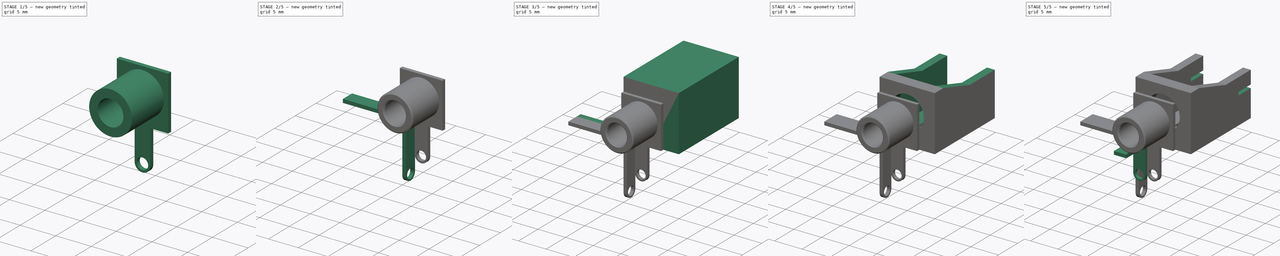
[diagram: build sequence overview — one tinted view per stage of 5, left to right]
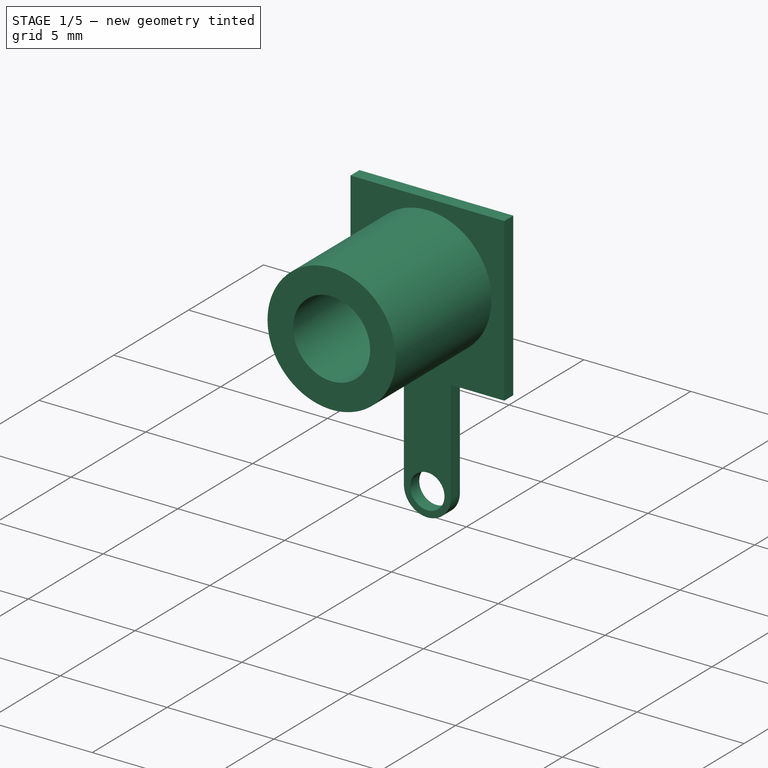
[diagram: stage 1 of 5 — iso view after this stage's code; geometry added in this stage tinted green]
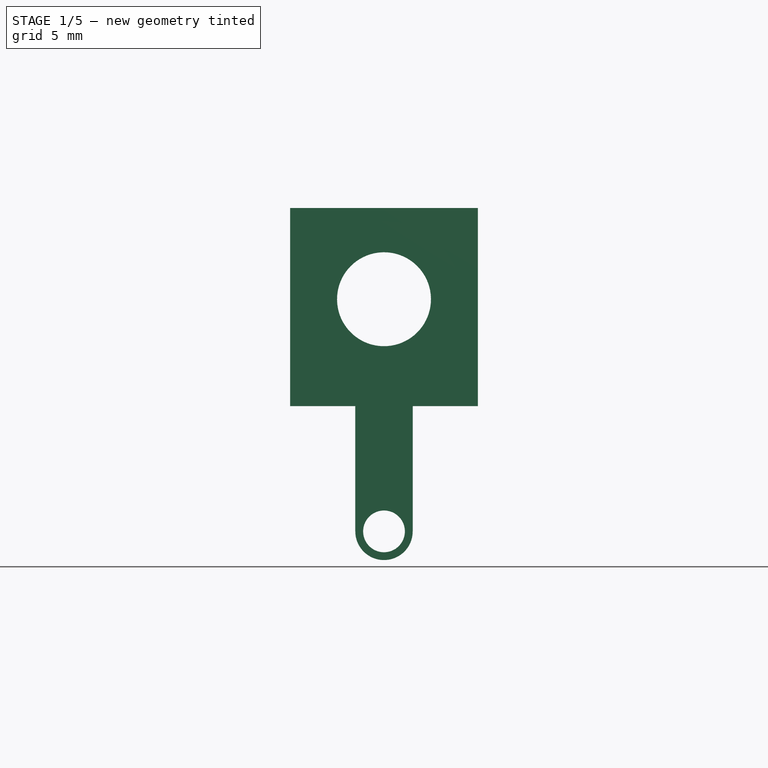
[diagram: stage 1 of 5 — front view after this stage's code; geometry added in this stage tinted green]
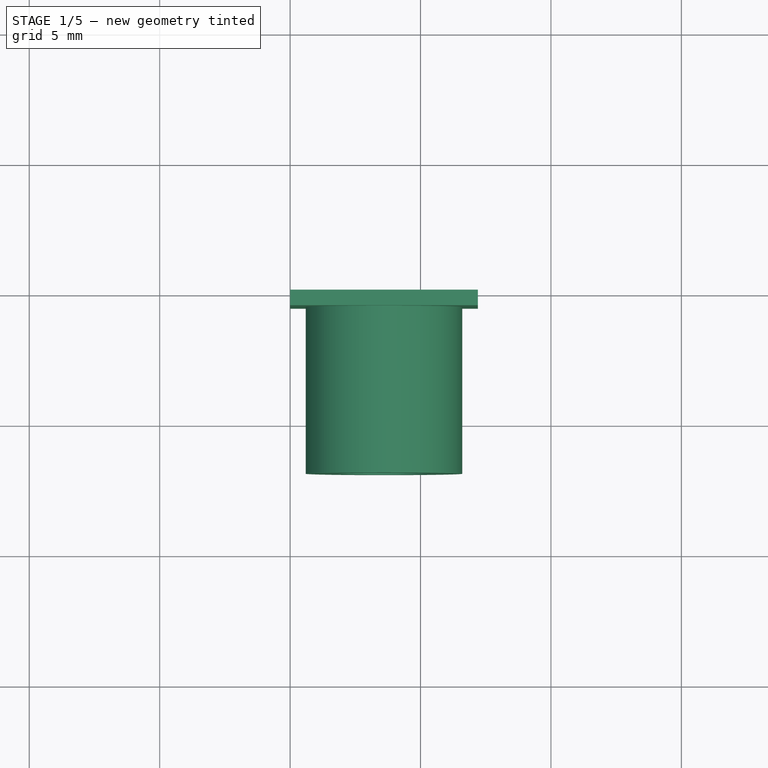
[diagram: stage 1 of 5 — top view after this stage's code; geometry added in this stage tinted green]
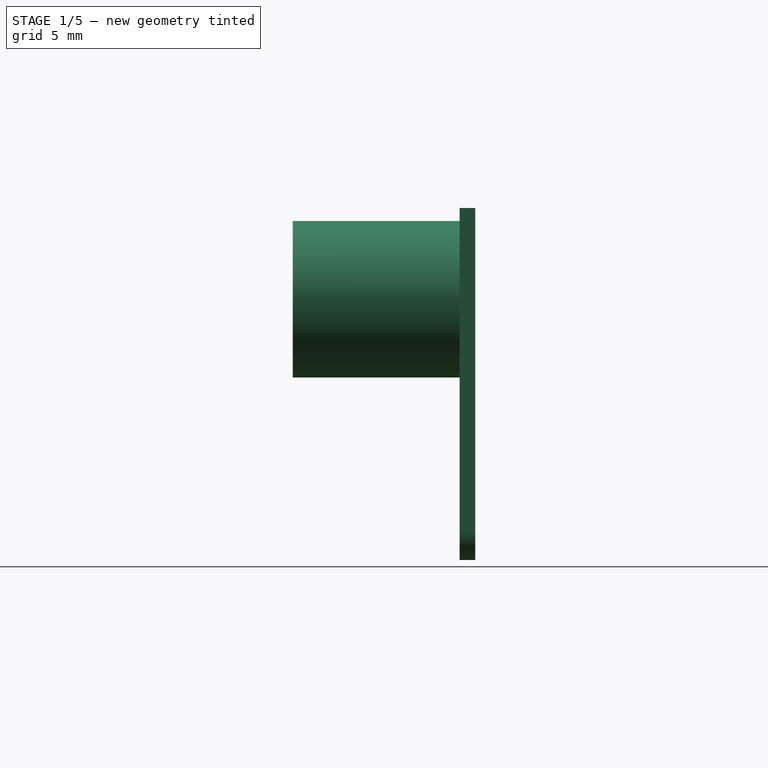
[diagram: stage 1 of 5 — right view after this stage's code; geometry added in this stage tinted green]
FCSTD DOCUMENT  (FreeCAD 0.18R4 (GitTag))
Label: Jack
License: All rights reserved
LicenseURL: http://en.wikipedia.org/wiki/All_rights_reserved
objects: Sketcher::SketchObject×13, PartDesign::Pad×8, PartDesign::Pocket×5, PartDesign::Body×4, PartDesign::Hole×1, PartDesign::Chamfer×1, App::Part×1
note: 46 computed .brp shape members not serialized (recipe doc carries the construction recipe); baked Part::Feature solids carry a one-line shape summary decoded from their .brp

FEATURE [Sketcher::SketchObject] Sketch005
  MapMode = 5
  Placement = pos=(0,0,0) rot=(1,0,0;1.5708rad)
  Support = -> [XZ_Plane]
  sketch-geometry (10):
    g0: LineSegment StartX=7.2 StartY=7.6 StartZ=0 EndX=0 EndY=7.6 EndZ=0
    g1: LineSegment StartX=0 StartY=7.6 StartZ=0 EndX=0 EndY=0 EndZ=0
    g2: LineSegment StartX=0 StartY=0 StartZ=0 EndX=2.5 EndY=0 EndZ=0
    g3: LineSegment StartX=2.5 StartY=0 StartZ=0 EndX=2.5 EndY=-4.8 EndZ=0
    g4: LineSegment StartX=4.7 StartY=-4.8 StartZ=0 EndX=4.7 EndY=0 EndZ=0
    g5: LineSegment StartX=4.7 StartY=-4e-16 StartZ=0 EndX=7.2 EndY=-4e-16 EndZ=0
    g6: LineSegment StartX=7.2 StartY=-4e-16 StartZ=0 EndX=7.2 EndY=7.6 EndZ=0
    g7: ArcOfCircle CenterX=3.6 CenterY=-4.8 CenterZ=0 NormalX=0 NormalY=0 NormalZ=1 AngleXU=0 Radius=1.1 StartAngle=3.14159 EndAngle=6.28319
    g8: GeomPoint X=3.6 Y=-5.9 Z=0
    g9: Circle CenterX=3.6 CenterY=-4.8 CenterZ=0 NormalX=0 NormalY=0 NormalZ=1 AngleXU=0 Radius=0.8
  constraints (28):
    c: Coincident(g0,g1)
    c: Coincident(g1,g2)
    c: Coincident(g2,g3)
    c: Coincident(g4,g5)
    c: Coincident(g5,g6)
    c: Coincident(g6,g0)
    c: Horizontal(g0)
    c: Horizontal(g2)
    c: Horizontal(g5)
    c: Vertical(g6)
    c: Vertical(g1)
    c: Vertical(g3)
    c: Vertical(g4)
    c: Equal(g5,g2)
    c: Equal(g1,g6)
    c: Equal(g3,g4)
    c: DistanceX(g8,g7) = 0
    c: PointOnObject(g8,g7)
    c: Coincident(g4,g7)
    c: Coincident(g3,g7)
    c: DistanceX(g2,g4) = 2.2
    c: Coincident(g9,g7)
    c: Radius(g9) = 0.8
    c: DistanceX(g0,g0) = 7.2
    c: DistanceY(g6,g6) = 7.6
    c: Coincident(g1,g-1)
    c: DistanceY(g8,g2) = 5.9
    c: Tangent(g4,g7) = -1.5708
FEATURE [PartDesign::Pad] Pad001
  Length = 0.6
  Length2 = 100
  Placement = pos=(0,0,0) rot=(1,0,0;1.5708rad)
  Profile = -> Sketch005
  Type = 0
FEATURE [Sketcher::SketchObject] Sketch006
  ExternalGeometry = -> [Pad001]
  MapMode = 5
  Placement = pos=(0,-0.6,3e-16) rot=(1,0,0;1.5708rad)
  Support = -> [Pad001]
  sketch-geometry (2):
    g0: Circle CenterX=3.6 CenterY=4.1 CenterZ=0 NormalX=0 NormalY=0 NormalZ=1 AngleXU=0 Radius=3
    g1: GeomPoint X=3.6 Y=7.6 Z=0
  constraints (4):
    c: Diameter(g0) = 6
    c: DistanceY(g0,g-3) = 3.5
    c: Symmetric(g-3,g-3,g1)
    c: DistanceX(g1,g0) = 0
FEATURE [PartDesign::Pad] Pad002
  BaseFeature = -> Pad001
  Length = 6.4
  Length2 = 100
  Placement = pos=(0,0,0) rot=(1,0,0;1.5708rad)
  Profile = -> Sketch006
  Type = 0
FEATURE [Sketcher::SketchObject] Sketch007
  ExternalGeometry = -> [Pad002]
  MapMode = 5
  Placement = pos=(0,-7,6.9e-15) rot=(1,0,0;1.5708rad)
  Support = -> [Pad002]
  sketch-geometry (1):
    g0: Circle CenterX=3.6 CenterY=4.1 CenterZ=0 NormalX=0 NormalY=0 NormalZ=1 AngleXU=0 Radius=1.8
  constraints (2):
    c: Coincident(g-3,g0)
    c: Diameter(g0) = 3.6
FEATURE [PartDesign::Pocket] Pocket003
  BaseFeature = -> Pad002
  Length = 9
  Length2 = 100
  Placement = pos=(0,0,0) rot=(1,0,0;1.5708rad)
  Profile = -> Sketch007
  Type = 0
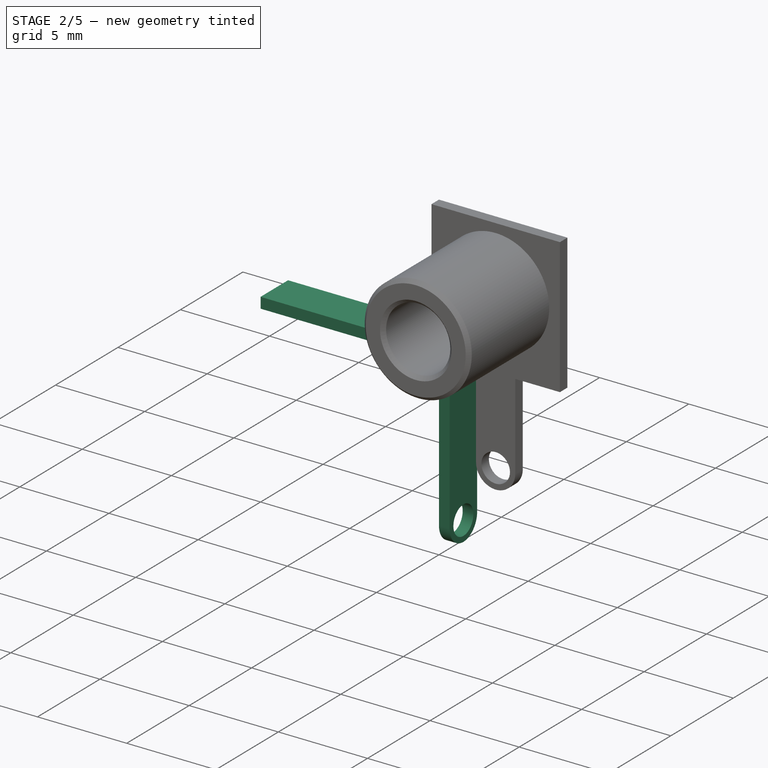
[diagram: stage 2 of 5 — iso view after this stage's code; geometry added in this stage tinted green]
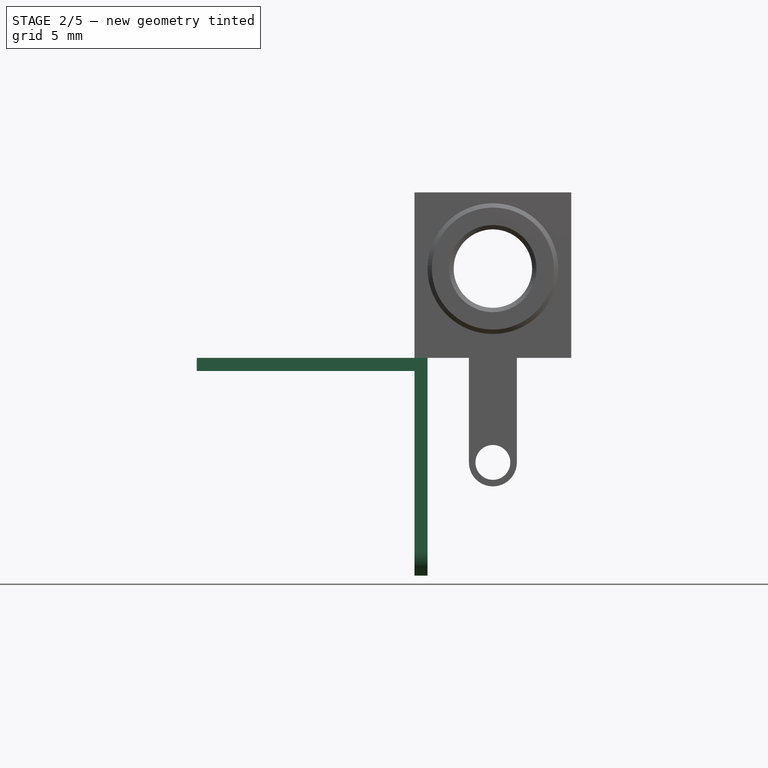
[diagram: stage 2 of 5 — front view after this stage's code; geometry added in this stage tinted green]
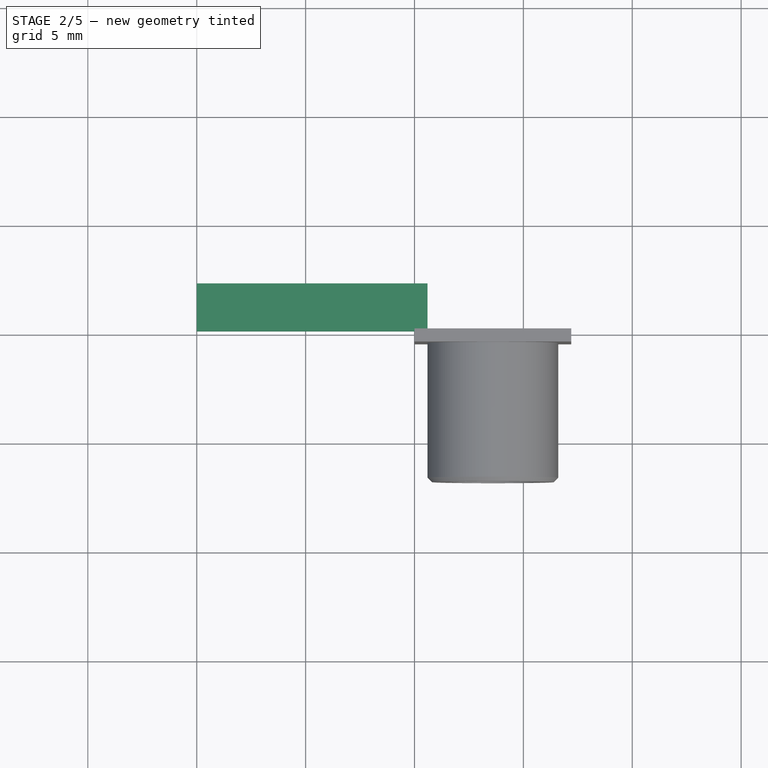
[diagram: stage 2 of 5 — top view after this stage's code; geometry added in this stage tinted green]
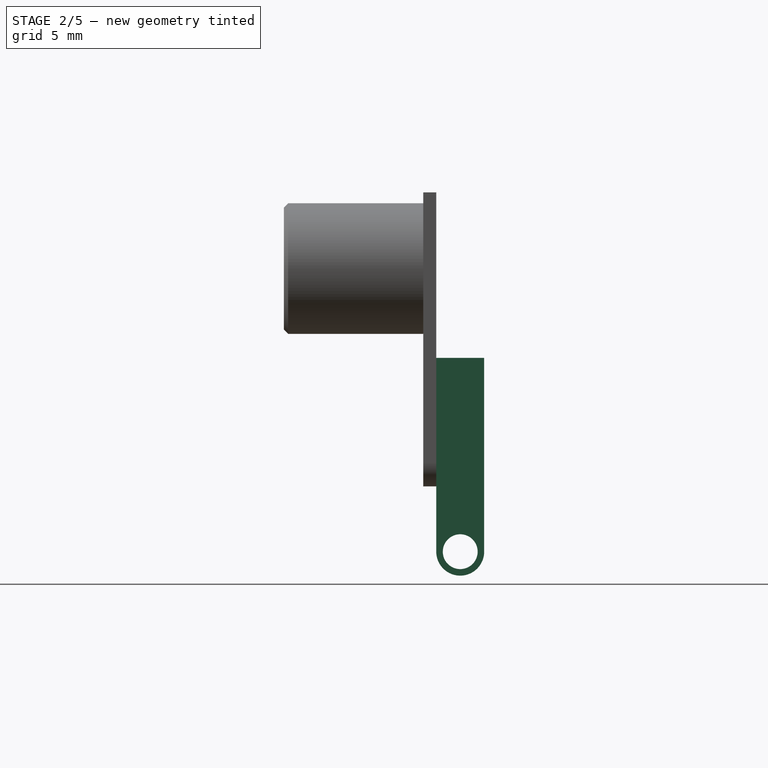
[diagram: stage 2 of 5 — right view after this stage's code; geometry added in this stage tinted green]
FEATURE [PartDesign::Body] Body002  label="Rear lug"
  Group = -> [Sketch008,Pad003,Sketch009,Pad004]
  Origin = -> Origin002
  Placement = pos=(3.9,16.1,2) rot=(0,0,1;0rad)
  Tip = -> Pad004
FEATURE [Sketcher::SketchObject] Sketch010
  MapMode = 5
  Placement = pos=(0,0,0) rot=(0.57735,0.57735,0.57735;2.0944rad)
  Support = -> [YZ_Plane004]
  sketch-geometry (6):
    g0: LineSegment StartX=0 StartY=-8.9 StartZ=0 EndX=0 EndY=0 EndZ=0
    g1: LineSegment StartX=0 StartY=0 StartZ=0 EndX=2.2 EndY=0 EndZ=0
    g2: LineSegment StartX=2.2 StartY=0 StartZ=0 EndX=2.2 EndY=-8.9 EndZ=0
    g3: ArcOfCircle CenterX=1.1 CenterY=-8.9 CenterZ=0 NormalX=0 NormalY=0 NormalZ=1 AngleXU=0 Radius=1.1 StartAngle=3.14159 EndAngle=6.28319
    g4: GeomPoint X=1.1 Y=-10 Z=0
    g5: Circle CenterX=1.1 CenterY=-8.9 CenterZ=0 NormalX=0 NormalY=0 NormalZ=1 AngleXU=0 Radius=0.8
  constraints (15):
    c: Coincident(g0,g1)
    c: Coincident(g1,g2)
    c: Horizontal(g1)
    c: Vertical(g0)
    c: Vertical(g2)
    c: Equal(g2,g0)
    c: DistanceX(g1,g1) = 2.2
    c: PointOnObject(g4,g3)
    c: DistanceX(g3,g4) = 0
    c: Tangent(g3,g0) = 1.5708
    c: Coincident(g0,g-1)
    c: DistanceY(g4,g0) = 10
    c: Coincident(g2,g3)
    c: Radius(g5) = 0.8
    c: Coincident(g3,g5)
FEATURE [PartDesign::Pad] Pad005
  Length = 0.6
  Length2 = 100
  Placement = pos=(0,0,0) rot=(0.57735,0.57735,0.57735;2.0944rad)
  Profile = -> Sketch010
  Type = 0
FEATURE [Sketcher::SketchObject] Sketch011
  ExternalGeometry = -> [Pad005]
  MapMode = 5
  Placement = pos=(0,0,0) rot=(0.57735,0.57735,-0.57735;4.18879rad)
  Support = -> [Pad005]
  sketch-geometry (4):
    g0: LineSegment StartX=0 StartY=0.6 StartZ=0 EndX=2.2 EndY=0.6 EndZ=0
    g1: LineSegment StartX=2.2 StartY=0.6 StartZ=0 EndX=2.2 EndY=1.2e-15 EndZ=0
    g2: LineSegment StartX=2.2 StartY=1.2e-15 StartZ=0 EndX=0 EndY=0 EndZ=0
    g3: LineSegment StartX=0 StartY=0 StartZ=0 EndX=0 EndY=0.6 EndZ=0
  constraints (10):
    c: Coincident(g0,g1)
    c: Coincident(g1,g2)
    c: Coincident(g2,g3)
    c: Coincident(g3,g0)
    c: Horizontal(g0)
    c: Vertical(g1)
    c: Vertical(g3)
    c: Coincident(g1,g-3)
    c: Coincident(g2,g-1)
    c: DistanceY(g3,g3) = 0.6
FEATURE [PartDesign::Pad] Pad006
  BaseFeature = -> Pad005
  Length = 10
  Length2 = 100
  Placement = pos=(0,0,0) rot=(0.57735,0.57735,0.57735;2.0944rad)
  Profile = -> Sketch011
  Type = 0
FEATURE [PartDesign::Body] Body004  label="Side lug"
  Group = -> [Sketch010,Pad005,Sketch011,Pad006,Pad007]
  Origin = -> Origin004
  Placement = pos=(10,12.3,5.5) rot=(0,0,1;0rad)
  Tip = -> Pad007
FEATURE [PartDesign::Chamfer] Chamfer
  Base = -> Pocket003 [Face14]
  BaseFeature = -> Pocket003
  Placement = pos=(0,0,0) rot=(1,0,0;1.5708rad)
  Size = 0.2
FEATURE [PartDesign::Body] Body  label="Front lug"
  Group = -> [Sketch005,Pad001,Sketch006,Pad002,Sketch007,Pocket003,Chamfer]
  Origin = -> Origin
  Placement = pos=(1.4,2.6,1.4) rot=(0,0,1;0rad)
  Tip = -> Chamfer
FEATURE [App::Part] Part  label="PJ302M"
  Group = -> [Body001,Body,Body002,Body004]
  Origin = -> Origin005
  Placement = pos=(0,4,0) rot=(0,0,1;0rad)
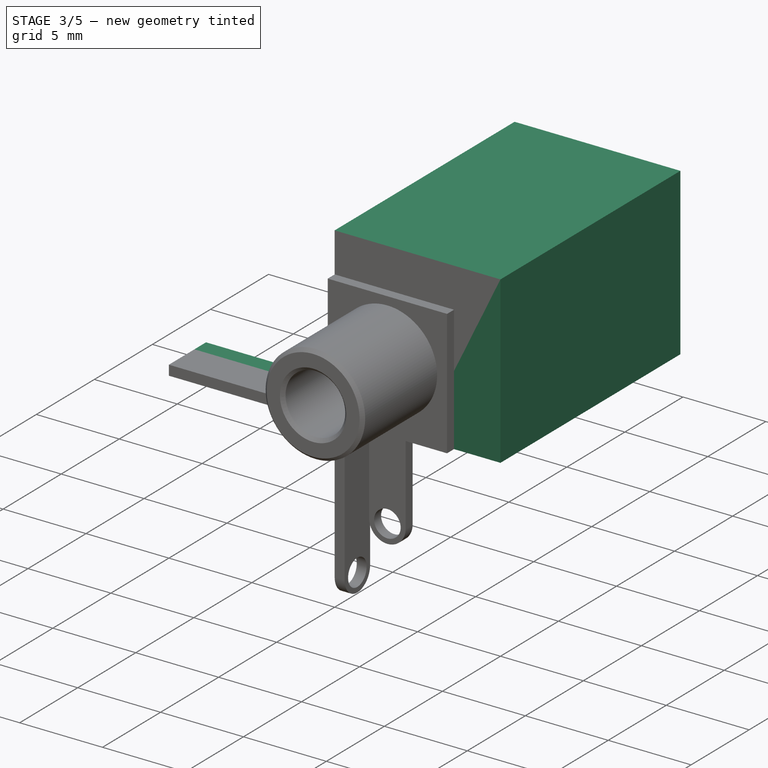
[diagram: stage 3 of 5 — iso view after this stage's code; geometry added in this stage tinted green]
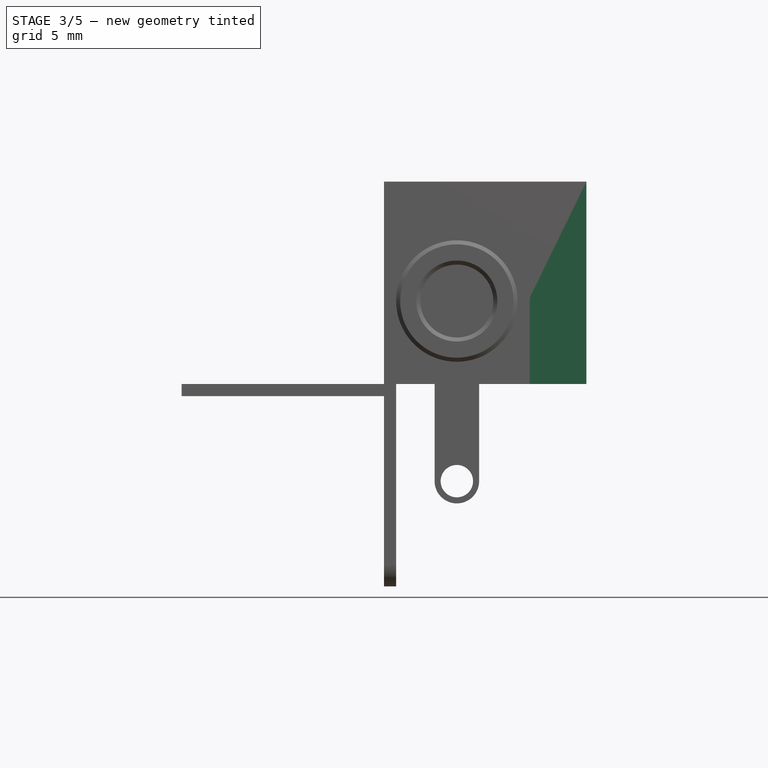
[diagram: stage 3 of 5 — front view after this stage's code; geometry added in this stage tinted green]
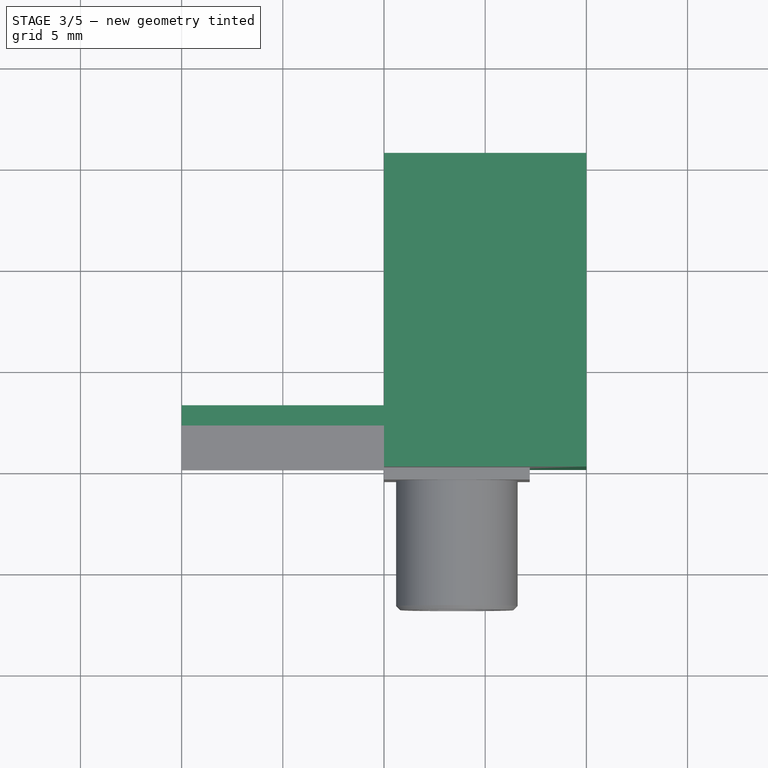
[diagram: stage 3 of 5 — top view after this stage's code; geometry added in this stage tinted green]
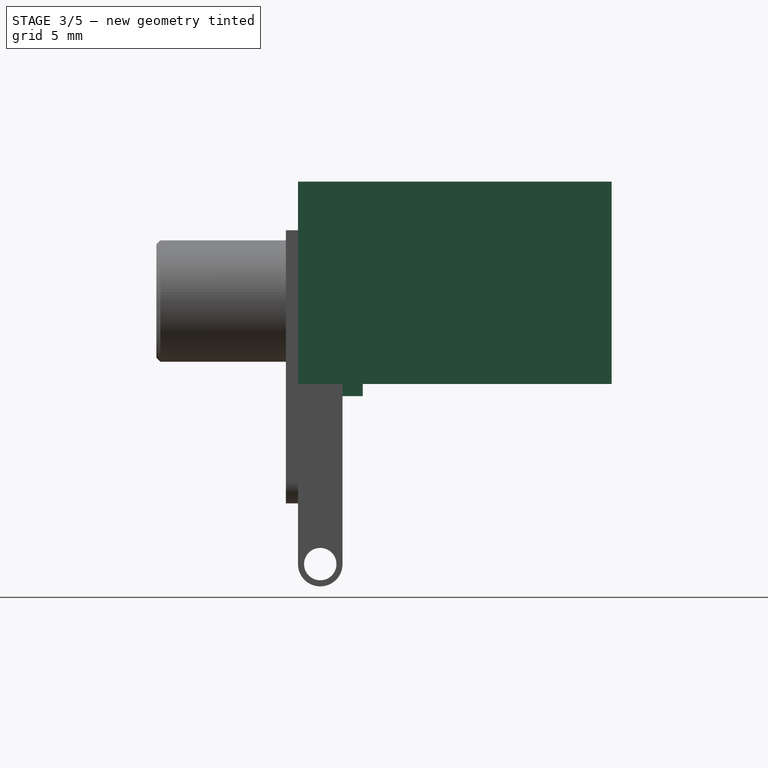
[diagram: stage 3 of 5 — right view after this stage's code; geometry added in this stage tinted green]
FEATURE [Sketcher::SketchObject] Sketch
  MapMode = 5
  Placement = pos=(0,0,0) rot=(0.57735,0.57735,0.57735;2.0944rad)
  Support = -> [YZ_Plane001]
  sketch-geometry (4):
    g0: LineSegment StartX=0 StartY=10 StartZ=0 EndX=0 EndY=0 EndZ=0
    g1: LineSegment StartX=0 StartY=0 StartZ=0 EndX=15.5 EndY=0 EndZ=0
    g2: LineSegment StartX=15.5 StartY=0 StartZ=0 EndX=15.5 EndY=10 EndZ=0
    g3: LineSegment StartX=15.5 StartY=10 StartZ=0 EndX=0 EndY=10 EndZ=0
  constraints (11):
    c: Coincident(g0,g1)
    c: Coincident(g1,g2)
    c: Coincident(g3,g0)
    c: Vertical(g0)
    c: Parallel(g2,g0)
    c: Horizontal(g1)
    c: Horizontal(g3)
    c: DistanceX(g1,g1) = 15.5
    c: DistanceY(g0,g0) = 10
    c: Coincident(g2,g3)
    c: Coincident(g-1,g0)
FEATURE [PartDesign::Pad] Pad  label="Base"
  Length = 10
  Length2 = 100
  Placement = pos=(0,0,0) rot=(0.57735,0.57735,0.57735;2.0944rad)
  Profile = -> Sketch
  Type = 0
FEATURE [Sketcher::SketchObject] Sketch001
  MapMode = 5
  Placement = pos=(0,0,0) rot=(-0.57735,-0.57735,0.57735;4.18879rad)
  Support = -> [Pad]
  sketch-geometry (5):
    g0: LineSegment StartX=-2 StartY=6.1 StartZ=0 EndX=-2 EndY=3.9 EndZ=0
    g1: LineSegment StartX=-2 StartY=3.9 StartZ=0 EndX=0 EndY=3.9 EndZ=0
    g2: LineSegment StartX=0 StartY=3.9 StartZ=0 EndX=-1e-16 EndY=5 EndZ=0
    g3: LineSegment StartX=-1e-16 StartY=5 StartZ=0 EndX=-1e-16 EndY=6.1 EndZ=0
    g4: LineSegment StartX=-1e-16 StartY=6.1 StartZ=0 EndX=-2 EndY=6.1 EndZ=0
  constraints (14):
    c: Coincident(g0,g1)
    c: Coincident(g1,g2)
    c: Coincident(g2,g3)
    c: Coincident(g3,g4)
    c: Coincident(g4,g0)
    c: Horizontal(g1)
    c: Horizontal(g4)
    c: Vertical(g0)
    c: Vertical(g3)
    c: Symmetric(g3,g1,g2)
    c: DistanceY(g-1,g2) = 5
    c: DistanceX(g1,g1) = 2
    c: DistanceY(g0,g0) = 2.2
    c: DistanceX(g1,g-1) = 0
FEATURE [PartDesign::Pocket] Pocket  label="Front lug pocket"
  BaseFeature = -> Pad
  Length = 9
  Length2 = 100
  Placement = pos=(0,0,0) rot=(0.57735,0.57735,0.57735;2.0944rad)
  Profile = -> Sketch001
  Type = 0
FEATURE [PartDesign::Body] Body001  label="Housing"
  Group = -> [Sketch,Pad,Sketch001,Pocket,Sketch002,Sketch003,Pocket001,Sketch004,Pocket002,Hole,Sketch012,Pocket004]
  Origin = -> Origin001
  Tip = -> Pocket004
FEATURE [PartDesign::Pad] Pad007
  BaseFeature = -> Pad006
  Length = 1
  Length2 = 100
  Placement = pos=(0,0,0) rot=(0.57735,0.57735,0.57735;2.0944rad)
  Profile = -> Pad006 [Face12]
  Type = 0
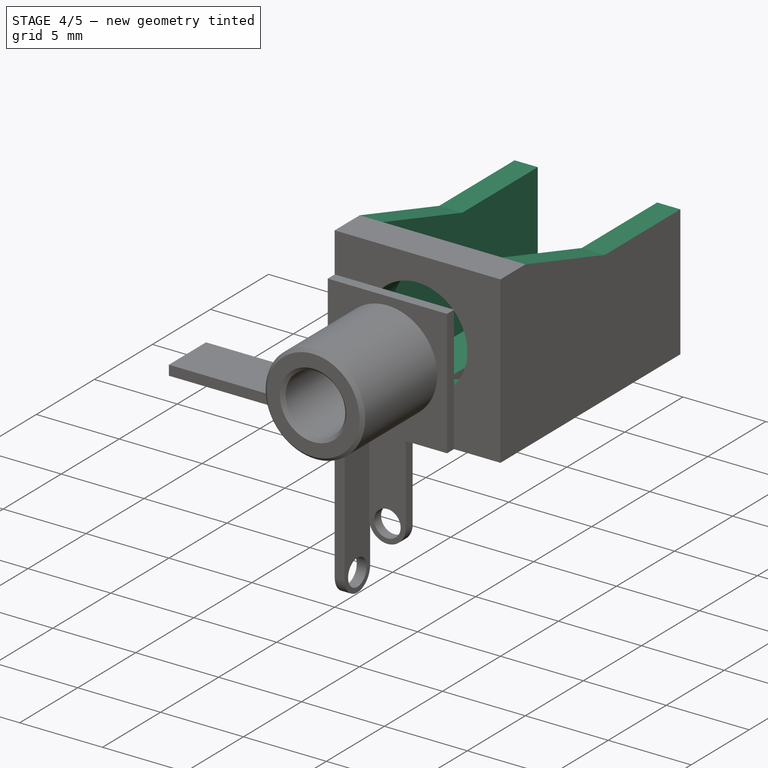
[diagram: stage 4 of 5 — iso view after this stage's code; geometry added in this stage tinted green]
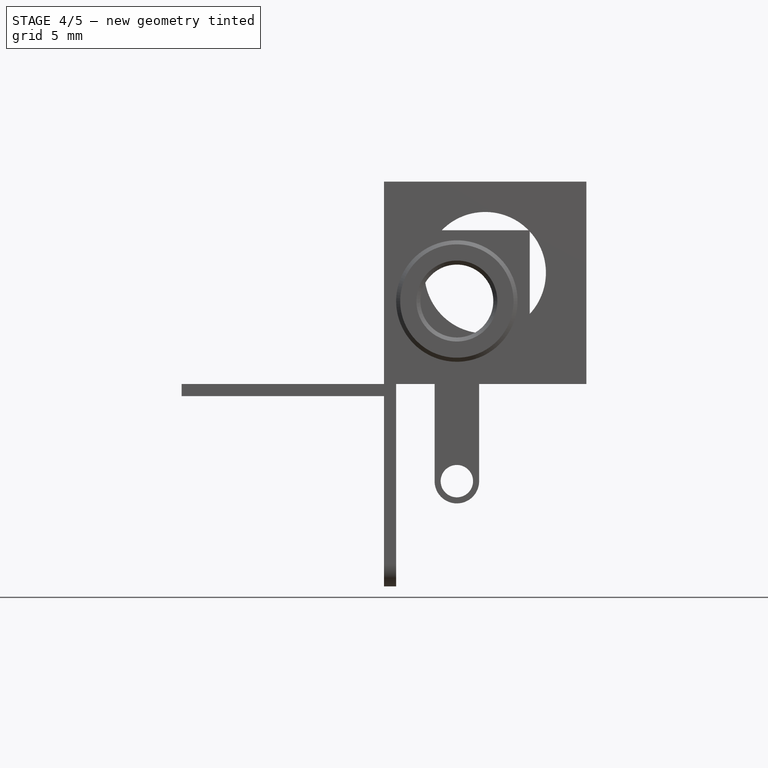
[diagram: stage 4 of 5 — front view after this stage's code; geometry added in this stage tinted green]
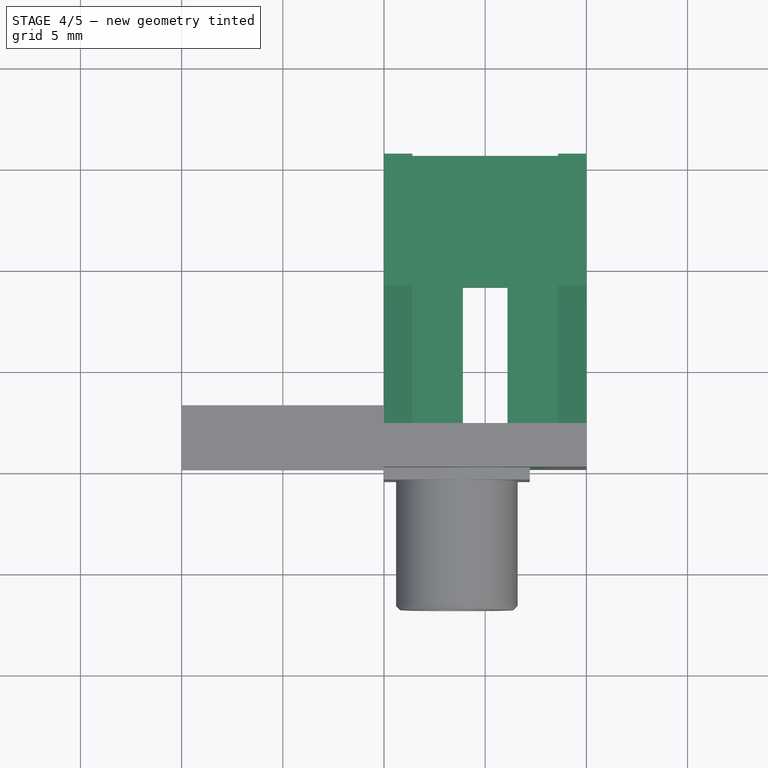
[diagram: stage 4 of 5 — top view after this stage's code; geometry added in this stage tinted green]
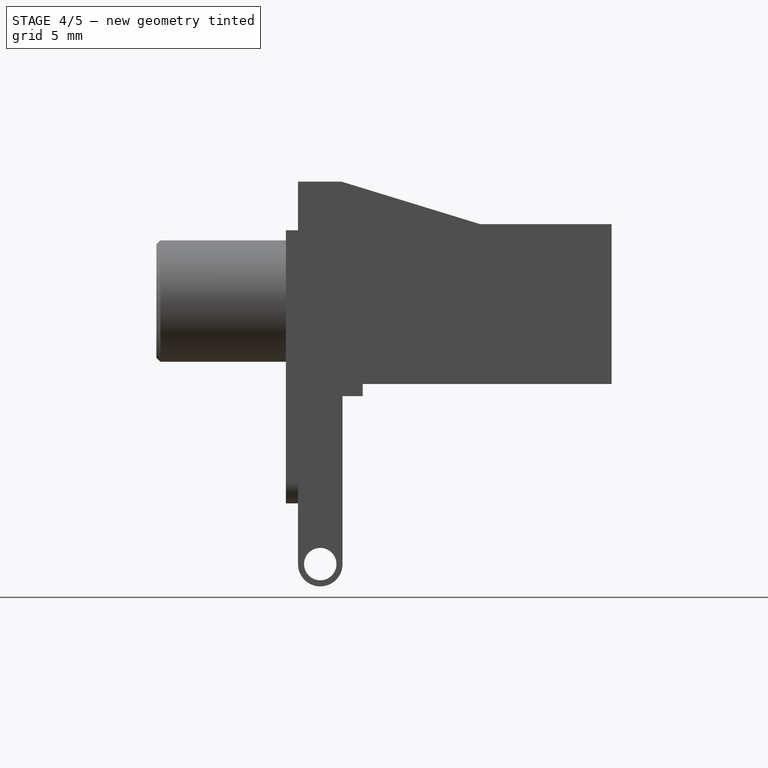
[diagram: stage 4 of 5 — right view after this stage's code; geometry added in this stage tinted green]
FEATURE [Sketcher::SketchObject] Sketch002
  ExternalGeometry = -> [Pocket]
  MapMode = 5
  Placement = pos=(0,-2.2e-15,0) rot=(0.57735,0.57735,-0.57735;2.0944rad)
  Support = -> [Pocket]
  sketch-geometry (1):
    g0: Circle CenterX=-5.5 CenterY=5 CenterZ=0 NormalX=0 NormalY=0 NormalZ=1 AngleXU=0 Radius=3
  constraints (3):
    c: Diameter(g0) = 6
    c: DistanceY(g-1,g0) = 5
    c: Distance(g0,g-4) = 4.5
FEATURE [Sketcher::SketchObject] Sketch003
  ExternalGeometry = -> [Pocket]
  MapMode = 5
  Placement = pos=(10,-9e-15,6e-15) rot=(0.57735,0.57735,0.57735;2.0944rad)
  sketch-geometry (4):
    g0: LineSegment StartX=2.15 StartY=10 StartZ=0 EndX=9 EndY=7.9 EndZ=0
    g1: LineSegment StartX=9 StartY=7.9 StartZ=0 EndX=15.5 EndY=7.9 EndZ=0
    g2: LineSegment StartX=15.5 StartY=7.9 StartZ=0 EndX=15.5 EndY=10 EndZ=0
    g3: LineSegment StartX=15.5 StartY=10 StartZ=0 EndX=2.15 EndY=10 EndZ=0
  constraints (11):
    c: Coincident(g0,g1)
    c: Coincident(g1,g2)
    c: Coincident(g2,g3)
    c: Coincident(g3,g0)
    c: Horizontal(g1)
    c: DistanceX(g1,g1) = 6.5
    c: Vertical(g2)
    c: Horizontal(g3)
    c: Coincident(g2,g-3)
    c: DistanceX(g-1,g0) = 2.15
    c: DistanceY(g2,g2) = 2.1
FEATURE [PartDesign::Pocket] Pocket001  label="Side pocket"
  BaseFeature = -> Pocket
  Length = 10
  Length2 = 100
  Placement = pos=(0,0,0) rot=(0.57735,0.57735,0.57735;2.0944rad)
  Profile = -> Sketch003
  Type = 0
FEATURE [Sketcher::SketchObject] Sketch004
  ExternalGeometry = -> [Pad]
  MapMode = 5
  Placement = pos=(-3.9e-15,5.6e-15,10) rot=(0,0,-1;1.5708rad)
  Support = -> [Pad]
  sketch-geometry (5):
    g0: LineSegment StartX=-15.5 StartY=8.6 StartZ=0 EndX=-15.5 EndY=5 EndZ=0
    g1: LineSegment StartX=-15.5 StartY=5 StartZ=0 EndX=-15.5 EndY=1.4 EndZ=0
    g2: LineSegment StartX=-15.5 StartY=1.4 StartZ=0 EndX=-2.15 EndY=1.4 EndZ=0
    g3: LineSegment StartX=-2.15 StartY=1.4 StartZ=0 EndX=-2.15 EndY=8.6 EndZ=0
    g4: LineSegment StartX=-2.15 StartY=8.6 StartZ=0 EndX=-15.5 EndY=8.6 EndZ=0
  constraints (14):
    c: Coincident(g0,g1)
    c: Coincident(g1,g2)
    c: Coincident(g2,g3)
    c: Coincident(g3,g4)
    c: Coincident(g4,g0)
    c: Vertical(g3)
    c: Vertical(g0)
    c: Horizontal(g4)
    c: Horizontal(g2)
    c: DistanceX(g2,g-4) = 2.15
    c: Symmetric(g1,g0,g0)
    c: DistanceY(g-5,g0) = 5
    c: DistanceX(g-5,g1) = 0
    c: DistanceY(g0,g-5) = 1.4
FEATURE [PartDesign::Pocket] Pocket002  label="Top pocket"
  BaseFeature = -> Pocket001
  Length = 8.6
  Length2 = 100
  Placement = pos=(0,0,0) rot=(0.57735,0.57735,0.57735;2.0944rad)
  Profile = -> Sketch004
  Type = 0
FEATURE [PartDesign::Hole] Hole
  BaseFeature = -> Pocket002
  Depth = 25
  DepthType = 0
  Diameter = 6
  DrillPoint = 1
  DrillPointAngle = 118
  HoleCutCountersinkAngle = 90
  HoleCutDepth = 0
  HoleCutDiameter = 0
  HoleCutType = 0
  ModelActualThread = false
  Placement = pos=(0,0,0) rot=(0.57735,0.57735,0.57735;2.0944rad)
  Profile = -> Sketch002
  Tapered = false
  TaperedAngle = 90
  ThreadAngle = 0
  ThreadClass = 0
  ThreadCutOffInner = 0
  ThreadCutOffOuter = 0
  ThreadDirection = 0
  ThreadFit = 0
  ThreadPitch = 0
  ThreadSize = 0
  ThreadType = 0
  Threaded = false
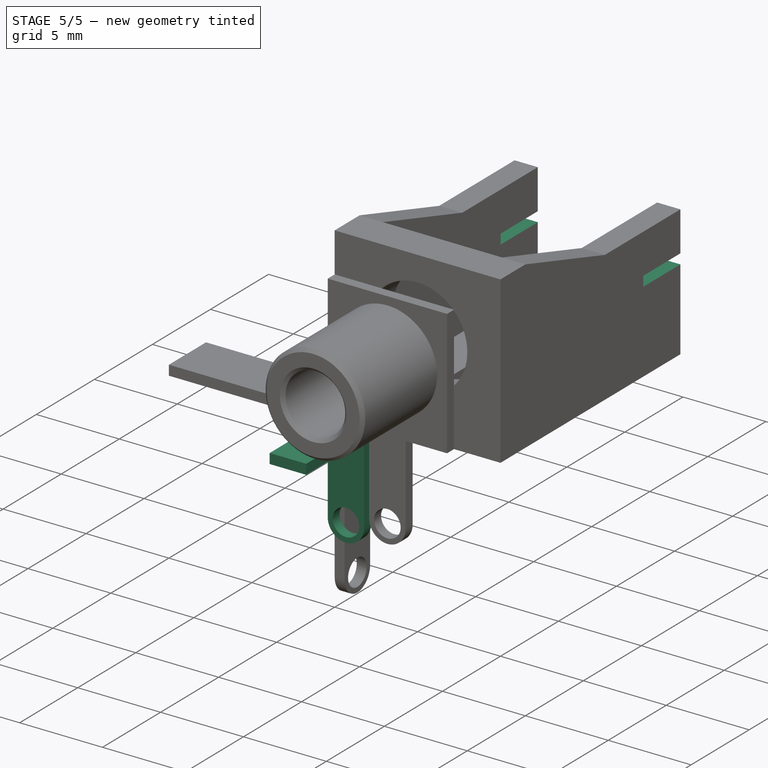
[diagram: stage 5 of 5 — iso view after this stage's code; geometry added in this stage tinted green]
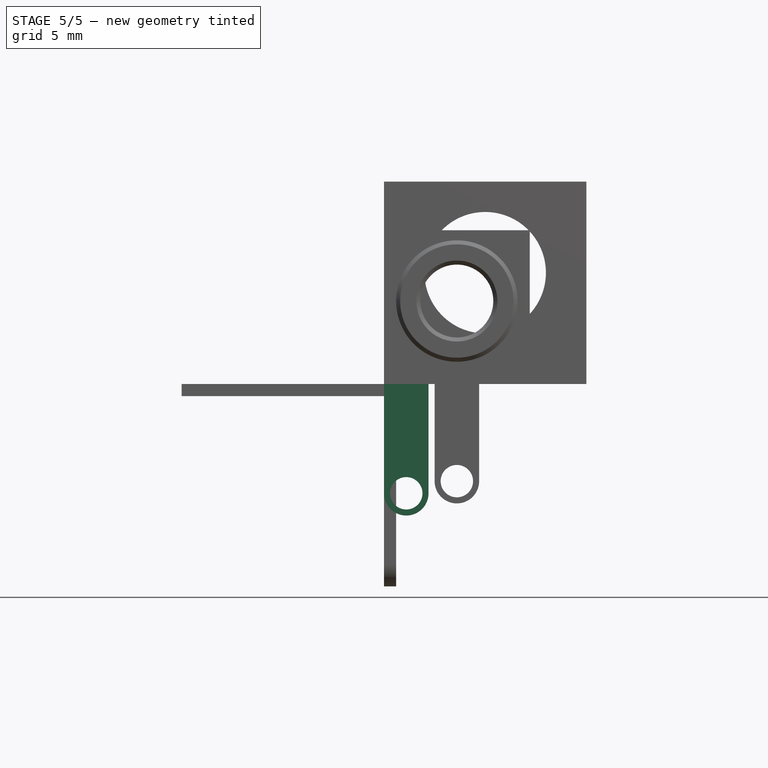
[diagram: stage 5 of 5 — front view after this stage's code; geometry added in this stage tinted green]
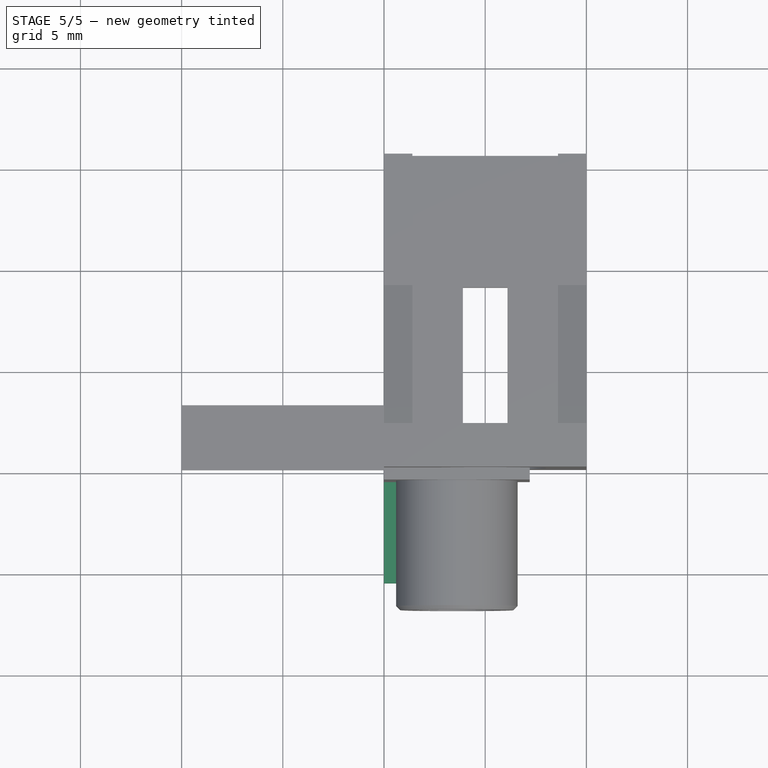
[diagram: stage 5 of 5 — top view after this stage's code; geometry added in this stage tinted green]
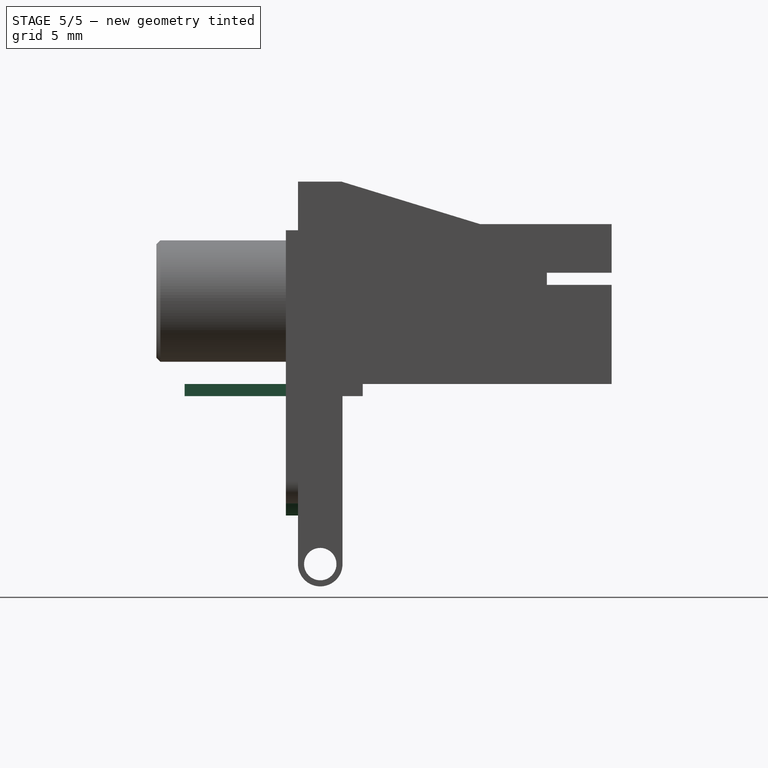
[diagram: stage 5 of 5 — right view after this stage's code; geometry added in this stage tinted green]
FEATURE [Sketcher::SketchObject] Sketch008
  MapMode = 5
  Placement = pos=(0,0,0) rot=(1,0,0;1.5708rad)
  Support = -> [XZ_Plane002]
  sketch-geometry (6):
    g0: LineSegment StartX=0 StartY=-5.4 StartZ=0 EndX=0 EndY=0 EndZ=0
    g1: LineSegment StartX=0 StartY=0 StartZ=0 EndX=2.2 EndY=-2e-16 EndZ=0
    g2: LineSegment StartX=2.2 StartY=-2e-16 StartZ=0 EndX=2.2 EndY=-5.4 EndZ=0
    g3: ArcOfCircle CenterX=1.1 CenterY=-5.4 CenterZ=0 NormalX=0 NormalY=0 NormalZ=1 AngleXU=0 Radius=1.1 StartAngle=3.14159 EndAngle=6.28319
    g4: Circle CenterX=1.1 CenterY=-5.4 CenterZ=0 NormalX=0 NormalY=0 NormalZ=1 AngleXU=0 Radius=0.8
    g5: GeomPoint X=1.1 Y=-6.5 Z=0
  constraints (14):
    c: Coincident(g0,g1)
    c: Coincident(g1,g2)
    c: Vertical(g0)
    c: Vertical(g2)
    c: Coincident(g0,g-1)
    c: Equal(g2,g0)
    c: Tangent(g3,g2) = 1.5708
    c: Tangent(g0,g3) = 1.5708
    c: DistanceX(g1,g1) = 2.2
    c: Radius(g4) = 0.8
    c: Coincident(g3,g4)
    c: DistanceX(g3,g5) = 0
    c: PointOnObject(g5,g3)
    c: DistanceY(g5,g0) = 6.5
FEATURE [PartDesign::Pad] Pad003
  Length = 0.6
  Length2 = 100
  Placement = pos=(0,0,0) rot=(1,0,0;1.5708rad)
  Profile = -> Sketch008
  Type = 0
FEATURE [Sketcher::SketchObject] Sketch009
  ExternalGeometry = -> [Pad003]
  MapMode = 5
  Placement = pos=(0,-0.6,3e-16) rot=(1,0,0;1.5708rad)
  Support = -> [Pad003]
  sketch-geometry (4):
    g0: LineSegment StartX=0 StartY=0 StartZ=0 EndX=2.2 EndY=0 EndZ=0
    g1: LineSegment StartX=2.2 StartY=0 StartZ=0 EndX=2.2 EndY=-0.6 EndZ=0
    g2: LineSegment StartX=2.2 StartY=-0.6 StartZ=0 EndX=0 EndY=-0.6 EndZ=0
    g3: LineSegment StartX=0 StartY=-0.6 StartZ=0 EndX=0 EndY=0 EndZ=0
  constraints (10):
    c: Coincident(g0,g1)
    c: Coincident(g1,g2)
    c: Coincident(g2,g3)
    c: Coincident(g3,g0)
    c: Horizontal(g2)
    c: Vertical(g1)
    c: Vertical(g3)
    c: Coincident(g0,g-1)
    c: Coincident(g0,g-3)
    c: DistanceY(g2,g0) = 0.6
FEATURE [PartDesign::Pad] Pad004
  BaseFeature = -> Pad003
  Length = 5
  Length2 = 100
  Placement = pos=(0,0,0) rot=(1,0,0;1.5708rad)
  Profile = -> Sketch009
  Type = 0
FEATURE [Sketcher::SketchObject] Sketch012
  ExternalGeometry = -> [Hole]
  MapMode = 5
  Placement = pos=(-1.42e-14,0,0) rot=(-0.57735,-0.57735,0.57735;2.0944rad)
  Support = -> [Hole]
  sketch-geometry (4):
    g0: LineSegment StartX=12.3 StartY=-4.9 StartZ=0 EndX=15.5 EndY=-4.9 EndZ=0
    g1: LineSegment StartX=15.5 StartY=-4.9 StartZ=0 EndX=15.5 EndY=-5.5 EndZ=0
    g2: LineSegment StartX=15.5 StartY=-5.5 StartZ=0 EndX=12.3 EndY=-5.5 EndZ=0
    g3: LineSegment StartX=12.3 StartY=-5.5 StartZ=0 EndX=12.3 EndY=-4.9 EndZ=0
  constraints (12):
    c: Coincident(g0,g1)
    c: Coincident(g1,g2)
    c: Coincident(g2,g3)
    c: Coincident(g3,g0)
    c: Horizontal(g0)
    c: Horizontal(g2)
    c: Vertical(g1)
    c: Vertical(g3)
    c: DistanceX(g0,g-4) = 0
    c: DistanceX(g0,g0) = 3.2
    c: DistanceY(g3,g3) = 0.6
    c: DistanceY(g0,g-4) = 4.9
FEATURE [PartDesign::Pocket] Pocket004
  BaseFeature = -> Hole
  Length = 10
  Length2 = 100
  Placement = pos=(0,0,0) rot=(0.57735,0.57735,0.57735;2.0944rad)
  Profile = -> Sketch012
  Type = 0
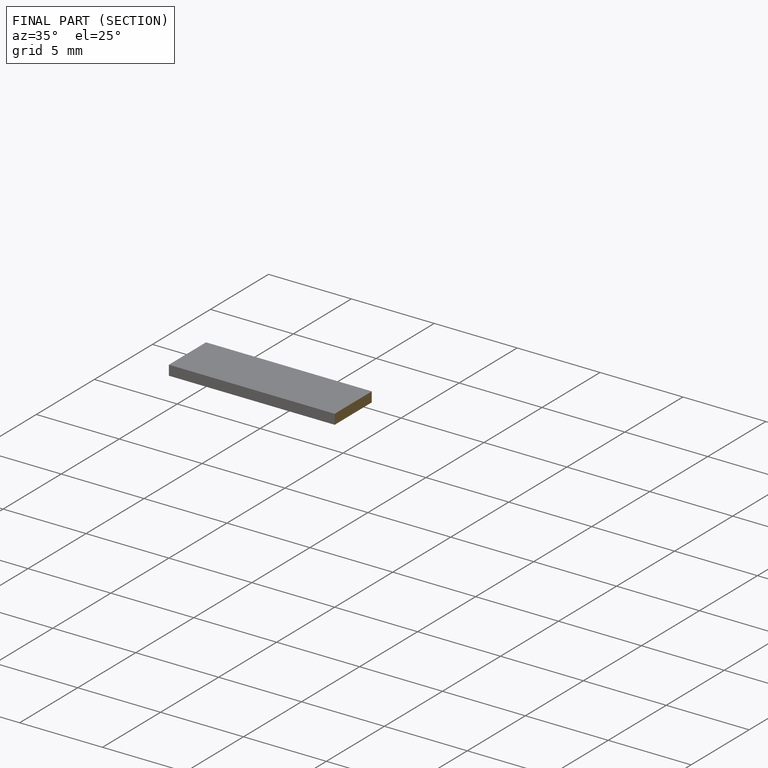
[diagram: finished part — half-section view (interior)]
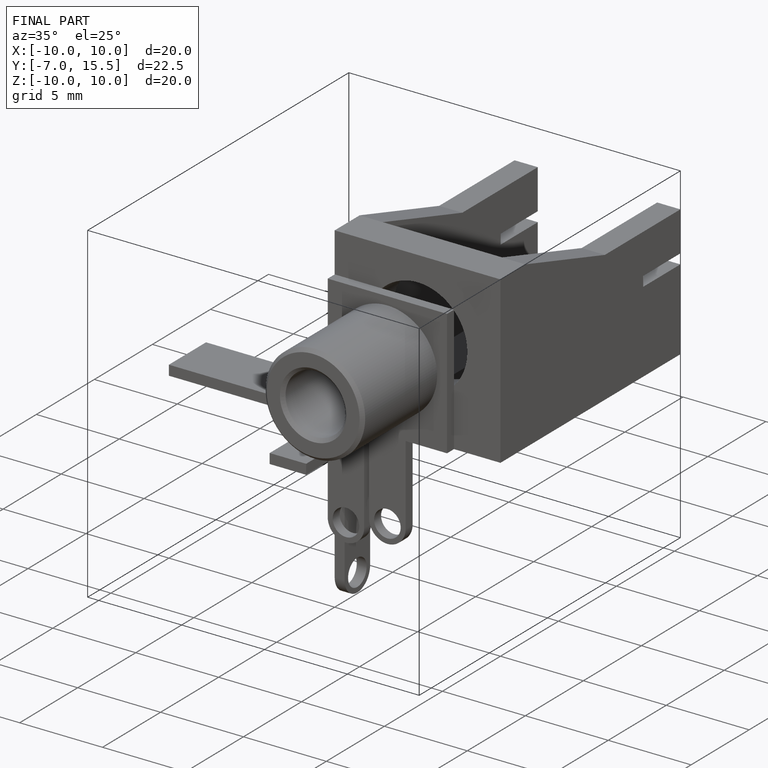
[diagram: finished part — iso view with bounding-box wireframe]
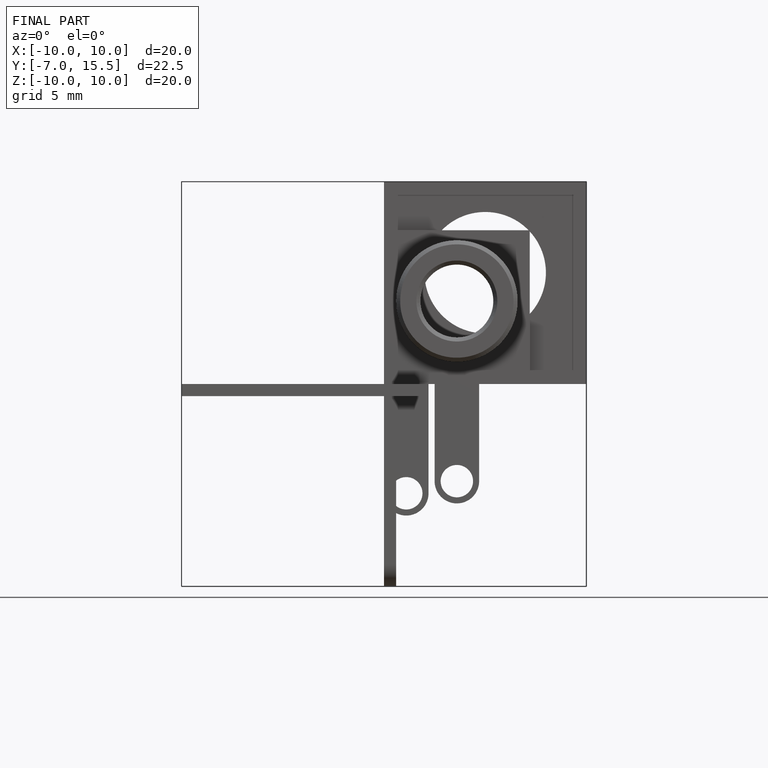
[diagram: finished part — front view with bounding-box wireframe]
